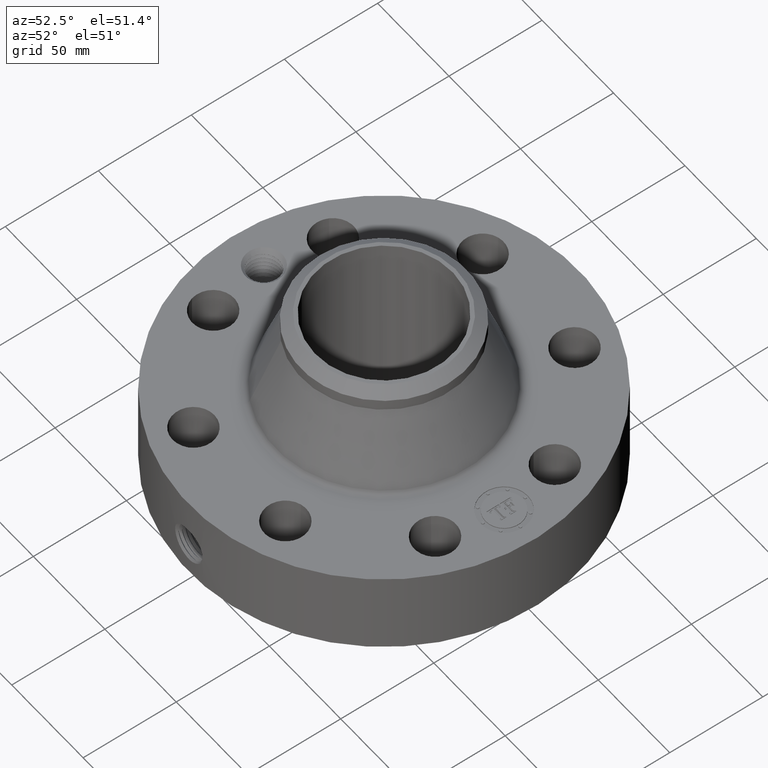
[diagram: clean part render]
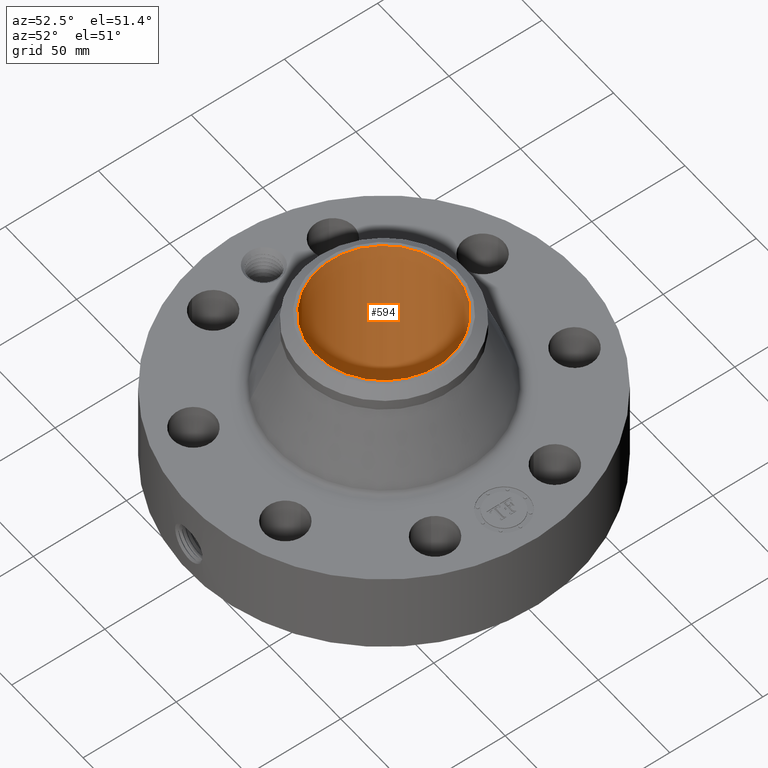
[diagram: same view with one face highlighted and labeled with its STEP entity id]
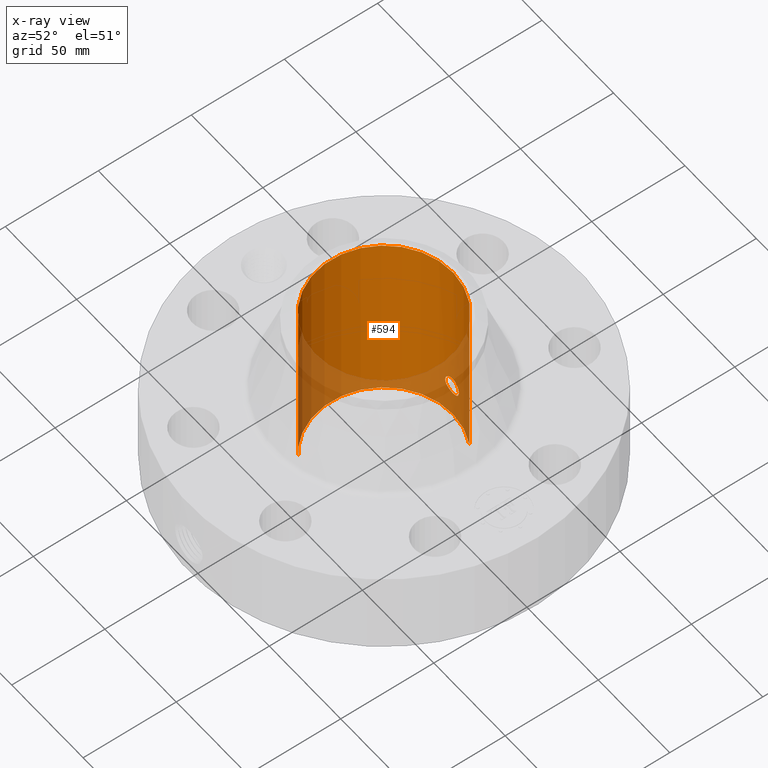
[diagram: x-ray of the same camera — body ghosted, the highlighted face saturated]
A machine part, auxiliary view. The second image highlights one B-rep face of the part: STEP entity #594.
The next image is the same camera in x-ray: the body ghosted, the highlighted face saturated — about 24% of this face is hidden behind the body in this view.
In plain terms, the highlighted cylindrical surface (partial cylindrical patch) has radius 36.83 mm, axis along (0, 0, -1).
Its self-contained STEP definition (entity closure, byte-faithful):
#232=AXIS2_PLACEMENT_3D('Cylinder Axis2P3D',#229,#230,#231) ;
#533=AXIS2_PLACEMENT_3D('Circle Axis2P3D',#531,#532,$) ;
#543=AXIS2_PLACEMENT_3D('Circle Axis2P3D',#541,#542,$) ;
#229=CARTESIAN_POINT('Axis2P3D Location',(0.,0.,1.90600000001)) ;
#238=CARTESIAN_POINT('Vertex',(0.695167030979,1.27249471475,3.81200000002)) ;
#240=CARTESIAN_POINT('Vertex',(-0.695167030979,-1.27249471475,3.81200000002)) ;
#243=CARTESIAN_POINT('Line Origine',(0.695167030979,1.27249471475,1.90600000001)) ;
#247=CARTESIAN_POINT('Vertex',(0.695167030979,1.27249471475,-7.55301333288E-015)) ;
#254=CARTESIAN_POINT('Vertex',(-0.695167030979,-1.27249471475,-7.55301333288E-015)) ;
#257=CARTESIAN_POINT('Line Origine',(-0.695167030979,-1.27249471475,1.90600000001)) ;
#531=CARTESIAN_POINT('Axis2P3D Location',(0.,0.,3.81200000002)) ;
#541=CARTESIAN_POINT('Axis2P3D Location',(0.,0.,-7.83275456743E-015)) ;
#553=CARTESIAN_POINT('Control Point',(-0.164546730355,1.44063332377,0.660107711514)) ;
#554=CARTESIAN_POINT('Control Point',(-0.153731070916,1.44186867031,0.640309779709)) ;
#555=CARTESIAN_POINT('Control Point',(-0.139944075101,1.4433405746,0.622149885808)) ;
#556=CARTESIAN_POINT('Control Point',(-0.123510243057,1.44489924446,0.606210668092)) ;
#557=CARTESIAN_POINT('Control Point',(-0.0771457667604,1.44849158589,0.573196869129)) ;
#558=CARTESIAN_POINT('Control Point',(-0.0211416426493,1.45046278414,0.559002255781)) ;
#559=CARTESIAN_POINT('Control Point',(0.0138877540661,1.45055904578,0.558336325563)) ;
#560=CARTESIAN_POINT('Control Point',(0.0704180054566,1.4488559579,0.570406332184)) ;
#561=CARTESIAN_POINT('Control Point',(0.118016251886,1.44536877231,0.601663409422)) ;
#562=CARTESIAN_POINT('Control Point',(0.135050957037,1.44381724598,0.616987403618)) ;
#563=CARTESIAN_POINT('Control Point',(0.174424603892,1.439735322,0.665004056748)) ;
#564=CARTESIAN_POINT('Control Point',(0.192227243466,1.43719597583,0.725976423199)) ;
#565=CARTESIAN_POINT('Control Point',(0.192994709922,1.43707883877,0.766812274139)) ;
#566=CARTESIAN_POINT('Control Point',(0.183180576886,1.43850499696,0.805783261208)) ;
#567=CARTESIAN_POINT('Control Point',(0.164546730355,1.44063332377,0.839892288492)) ;
#568=CARTESIAN_POINT('Vertex',(-0.164546730355,1.44063332377,0.660107711514)) ;
#570=CARTESIAN_POINT('Vertex',(0.164546730355,1.44063332377,0.839892288492)) ;
#574=CARTESIAN_POINT('Control Point',(-0.164546730355,1.44063332377,0.660107711514)) ;
#575=CARTESIAN_POINT('Control Point',(-0.180667055466,1.43879208718,0.689615768699)) ;
#576=CARTESIAN_POINT('Control Point',(-0.190186573472,1.43747636421,0.722762590194)) ;
#577=CARTESIAN_POINT('Control Point',(-0.191981307642,1.4372139593,0.757610846882)) ;
#578=CARTESIAN_POINT('Control Point',(-0.18182685668,1.43868281615,0.814335610105)) ;
#579=CARTESIAN_POINT('Control Point',(-0.152306950474,1.44206047109,0.862832475045)) ;
#580=CARTESIAN_POINT('Control Point',(-0.137610676694,1.44359571095,0.880350164567)) ;
#581=CARTESIAN_POINT('Control Point',(-0.0949008060203,1.44737324014,0.917937839684)) ;
#582=CARTESIAN_POINT('Control Point',(-0.0406902075547,1.45001449084,0.937807174107)) ;
#583=CARTESIAN_POINT('Control Point',(-0.00590058570113,1.45062862419,0.942085498895)) ;
#584=CARTESIAN_POINT('Control Point',(0.0569774643331,1.44961311384,0.935302547814)) ;
#585=CARTESIAN_POINT('Control Point',(0.111576586467,1.44600196386,0.904578332794)) ;
#586=CARTESIAN_POINT('Control Point',(0.133344179792,1.44404078453,0.886240694737)) ;
#587=CARTESIAN_POINT('Control Point',(0.151205851832,1.44215709661,0.864312602826)) ;
#588=CARTESIAN_POINT('Control Point',(0.164546730355,1.44063332377,0.839892288492)) ;
#230=DIRECTION('Axis2P3D Direction',(0.,0.,-0.0393700787402)) ;
#231=DIRECTION('Axis2P3D XDirection',(-0.0188750212049,-0.0345504945626,0.)) ;
#244=DIRECTION('Vector Direction',(0.,0.,-0.0393700787402)) ;
#258=DIRECTION('Vector Direction',(0.,0.,-0.0393700787402)) ;
#532=DIRECTION('Axis2P3D Direction',(0.,0.,-0.0393700787402)) ;
#542=DIRECTION('Axis2P3D Direction',(0.,0.,-0.0393700787402)) ;
#245=VECTOR('Line Direction',#244,0.0393700787402) ;
#259=VECTOR('Line Direction',#258,0.0393700787402) ;
#547=ORIENTED_EDGE('',*,*,#535,.F.) ;
#548=ORIENTED_EDGE('',*,*,#261,.T.) ;
#549=ORIENTED_EDGE('',*,*,#545,.T.) ;
#550=ORIENTED_EDGE('',*,*,#249,.F.) ;
#591=ORIENTED_EDGE('',*,*,#572,.F.) ;
#592=ORIENTED_EDGE('',*,*,#589,.T.) ;
#593=FACE_BOUND('',#590,.T.) ;
#594=ADVANCED_FACE('PartBody',(#551,#593),#233,.F.) ;
#552=B_SPLINE_CURVE_WITH_KNOTS('',5,(#553,#554,#555,#556,#557,#558,#559,#560,#561,#562,#563,#564,#565,#566,#567),.UNSPECIFIED.,.F.,.U.,(6,3,3,3,6),(0.,4.05789415053,10.1286634854,14.1897420025,21.180917831),.UNSPECIFIED.) ;
#573=B_SPLINE_CURVE_WITH_KNOTS('',5,(#574,#575,#576,#577,#578,#579,#580,#581,#582,#583,#584,#585,#586,#587,#588),.UNSPECIFIED.,.F.,.U.,(6,3,3,3,6),(0.,6.04813542238,10.100976064,16.1756421183,21.1809654856),.UNSPECIFIED.) ;
#534=CIRCLE('generated circle',#533,1.45000000001) ;
#544=CIRCLE('generated circle',#543,1.45000000001) ;
#233=CYLINDRICAL_SURFACE('generated cylinder',#232,1.45000000001) ;
#249=EDGE_CURVE('',#239,#248,#246,.T.) ;
#261=EDGE_CURVE('',#241,#255,#260,.T.) ;
#535=EDGE_CURVE('',#241,#239,#534,.T.) ;
#545=EDGE_CURVE('',#255,#248,#544,.T.) ;
#572=EDGE_CURVE('',#569,#571,#552,.T.) ;
#589=EDGE_CURVE('',#569,#571,#573,.T.) ;
#546=EDGE_LOOP('',(#547,#548,#549,#550)) ;
#590=EDGE_LOOP('',(#591,#592)) ;
#551=FACE_OUTER_BOUND('',#546,.T.) ;
#246=LINE('Line',#243,#245) ;
#260=LINE('Line',#257,#259) ;
#239=VERTEX_POINT('',#238) ;
#241=VERTEX_POINT('',#240) ;
#248=VERTEX_POINT('',#247) ;
#255=VERTEX_POINT('',#254) ;
#569=VERTEX_POINT('',#568) ;
#571=VERTEX_POINT('',#570) ;